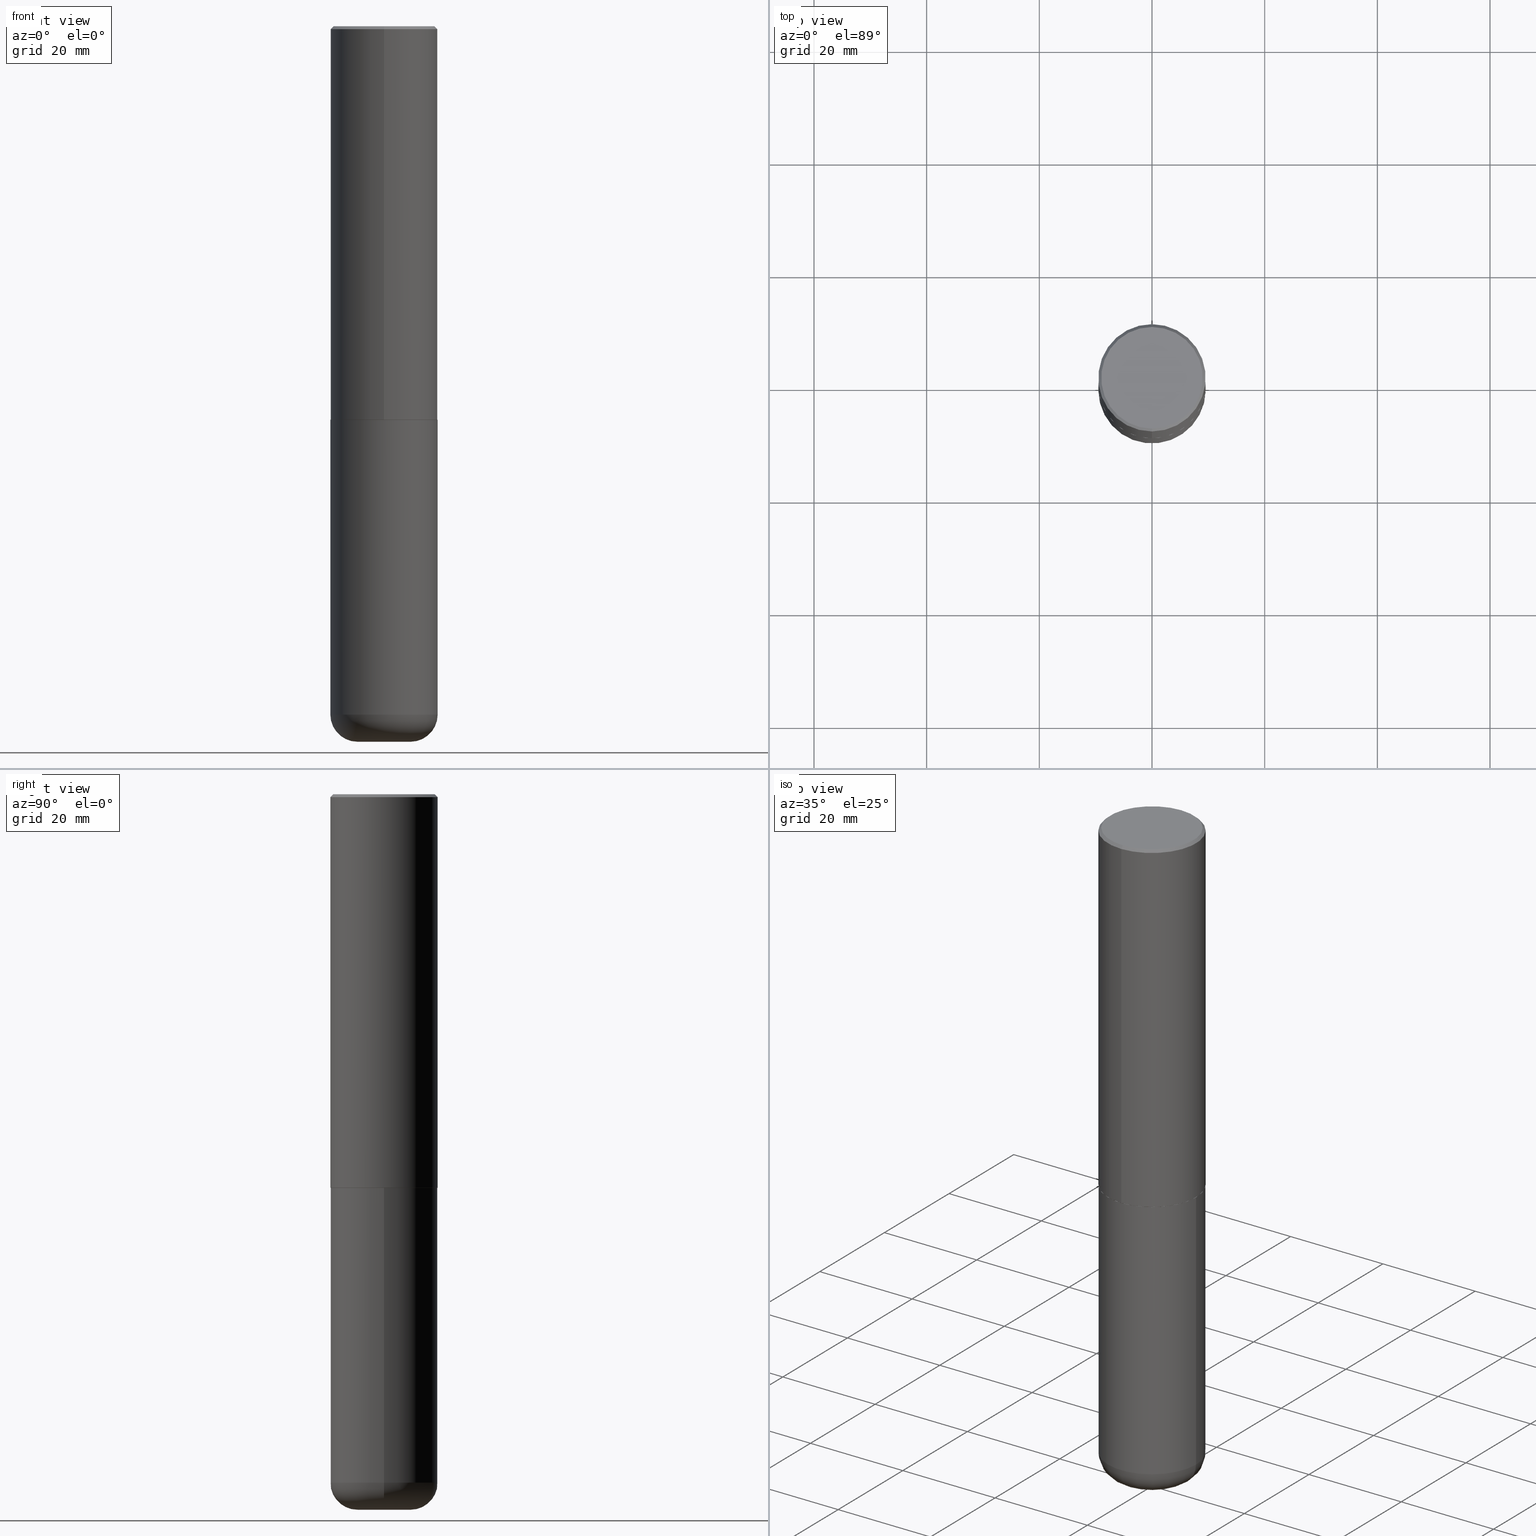
[diagram: canonical four-view strip — front | top / right | iso, engineering-drawing reading convention]
A machine part, canonical four-view strip (front | top / right | iso — engineering-drawing reading convention). The complete STEP part file that produces these views, byte-faithful:
ISO-10303-21;
HEADER;
FILE_DESCRIPTION (( 'STEP AP203' ),
    '1' );
FILE_NAME ('37675.STEP',
    '2024-03-02T07:52:41',
    ( '' ),
    ( '' ),
    'SwSTEP 2.0',
    'SolidWorks 2023',
    '' );
FILE_SCHEMA (( 'CONFIG_CONTROL_DESIGN' ));
ENDSEC;

DATA;
#1 = CYLINDRICAL_SURFACE ( 'NONE', #3, 0.3750000000000002220 ) ;
#2 = PERSON_AND_ORGANIZATION ( #291, #371 ) ;
#3 = AXIS2_PLACEMENT_3D ( 'NONE', #138, #395, #107 ) ;
#4 = CIRCLE ( 'NONE', #342, 0.1850000000000000810 ) ;
#5 = DIRECTION ( 'NONE',  ( -2.446040391741596606E-29, 3.490662795793665557E-15, 1.000000000000000000 ) ) ;
#6 =( NAMED_UNIT ( * ) SI_UNIT ( $, .STERADIAN. ) SOLID_ANGLE_UNIT ( ) );
#7 = CARTESIAN_POINT ( 'NONE',  ( -2.611628041454596160E-15, -0.3740000000000096581, -2.749999999999998668 ) ) ;
#8 = DIMENSIONAL_EXPONENTS ( 1.000000000000000000, 0.000000000000000000, 0.000000000000000000, 0.000000000000000000, 0.000000000000000000, 0.000000000000000000, 0.000000000000000000 ) ;
#9 = DIRECTION ( 'NONE',  ( 7.105427357601001859E-15, 1.000000000000000000, -3.491481338843145583E-15 ) ) ;
#10 = EDGE_CURVE ( 'NONE', #370, #416, #347, .T. ) ;
#11 = PERSON_AND_ORGANIZATION_ROLE ( 'design_supplier' ) ;
#12 = CARTESIAN_POINT ( 'NONE',  ( -2.618611004132351594E-15, -0.3750000000000002220, 1.308998548422625521E-15 ) ) ;
#13 = APPROVAL_PERSON_ORGANIZATION ( #2, #80, #98 ) ;
#14 = DIRECTION ( 'NONE',  ( -6.982962677686266711E-15, -1.000000000000000000, 3.490662795793665951E-15 ) ) ;
#15 = ADVANCED_FACE ( 'NONE', ( #102 ), #328, .T. ) ;
#16 = CARTESIAN_POINT ( 'NONE',  ( -0.3750000000000000555, -1.053326420172671351E-14, -2.750000000000000000 ) ) ;
#17 = ORIENTED_EDGE ( 'NONE', *, *, #167, .F. ) ;
#18 = DIRECTION ( 'NONE',  ( 2.446040391741596606E-29, -3.490662795793665557E-15, -1.000000000000000000 ) ) ;
#19 = DIRECTION ( 'NONE',  ( 6.982962677686265922E-15, 1.000000000000000000, -3.494488891895536035E-15 ) ) ;
#20 = DIRECTION ( 'NONE',  ( -2.445468806185136597E-29, 3.491481338843145583E-15, 1.000000000000000000 ) ) ;
#21 = CARTESIAN_POINT ( 'NONE',  ( 0.000000000000000000, 0.000000000000000000, 0.000000000000000000 ) ) ;
#22 = AXIS2_PLACEMENT_3D ( 'NONE', #133, #206, #99 ) ;
#23 = AXIS2_PLACEMENT_3D ( 'NONE', #345, #412, #385 ) ;
#24 =( CONVERSION_BASED_UNIT ( 'INCH', #350 ) LENGTH_UNIT ( ) NAMED_UNIT ( #8 ) );
#25 = ORIENTED_EDGE ( 'NONE', *, *, #144, .F. ) ;
#26 = EDGE_CURVE ( 'NONE', #130, #416, #362, .T. ) ;
#27 = ORIENTED_EDGE ( 'NONE', *, *, #325, .F. ) ;
#28 = CC_DESIGN_PERSON_AND_ORGANIZATION_ASSIGNMENT ( #284, #163, ( #180 ) ) ;
#29 = VERTEX_POINT ( 'NONE', #43 ) ;
#30 = EDGE_LOOP ( 'NONE', ( #290, #410 ) ) ;
#31 = EDGE_LOOP ( 'NONE', ( #197, #61 ) ) ;
#32 = EDGE_CURVE ( 'NONE', #59, #130, #334, .T. ) ;
#33 = PLANE ( 'NONE',  #23 ) ;
#34 = DIRECTION ( 'NONE',  ( 5.024295867789434219E-15, 0.7071067811867430830, 0.7071067811863519514 ) ) ;
#35 = CARTESIAN_POINT ( 'NONE',  ( 1.222734403092568523E-28, -1.745740669421572989E-14, -5.000000000000000000 ) ) ;
#36 = LOCAL_TIME ( 2, 52, 41.00000000000000000, #47 ) ;
#37 = APPLICATION_CONTEXT ( 'configuration controlled 3d designs of mechanical parts and assemblies' ) ;
#38 = DIRECTION ( 'NONE',  ( -6.982962677686265922E-15, -1.000000000000000000, 3.494488891895536035E-15 ) ) ;
#39 = DATE_TIME_ROLE ( 'classification_date' ) ;
#40 = EDGE_CURVE ( 'NONE', #126, #59, #327, .T. ) ;
#41 = DIRECTION ( 'NONE',  ( -6.982962677686266711E-15, -1.000000000000000000, 2.921762560068730595E-15 ) ) ;
#42 = MANIFOLD_SOLID_BREP ( 'Body-Move/Copy2[1]', #89 ) ;
#43 = CARTESIAN_POINT ( 'NONE',  ( -2.504081769186608216E-15, -0.3549999999999999822, 1.285848347115290366E-15 ) ) ;
#44 = PERSON_AND_ORGANIZATION ( #291, #371 ) ;
#45 = DIRECTION ( 'NONE',  ( -2.446040391741596606E-29, 3.490662795793665557E-15, 1.000000000000000000 ) ) ;
#46 = CIRCLE ( 'NONE', #208, 0.3549999999999999822 ) ;
#47 = COORDINATED_UNIVERSAL_TIME_OFFSET ( 5, 0, .BEHIND. ) ;
#48 = CARTESIAN_POINT ( 'NONE',  ( 1.176270495775050811E-28, -1.679402523983553013E-14, -4.810000000000000497 ) ) ;
#49 = CALENDAR_DATE ( 2024, 2, 3 ) ;
#50 = DIRECTION ( 'NONE',  ( -6.982962677686266711E-15, -1.000000000000000000, 2.921762560068730595E-15 ) ) ;
#51 = DIRECTION ( 'NONE',  ( -2.446040391741596606E-29, 3.490662795793665557E-15, 1.000000000000000000 ) ) ;
#52 = VECTOR ( 'NONE', #82, 39.37007874015748143 ) ;
#53 = DIRECTION ( 'NONE',  ( -6.982962677686265922E-15, -1.000000000000000000, 3.490662795793665557E-15 ) ) ;
#54 = CARTESIAN_POINT ( 'NONE',  ( -0.3750000000000000555, -1.412948998073515443E-14, -4.810000000000000497 ) ) ;
#55 = ORIENTED_EDGE ( 'NONE', *, *, #358, .F. ) ;
#56 = AXIS2_PLACEMENT_3D ( 'NONE', #393, #241, #271 ) ;
#57 = AXIS2_PLACEMENT_3D ( 'NONE', #305, #312, #19 ) ;
#58 = CARTESIAN_POINT ( 'NONE',  ( 1.176270495775050811E-28, -1.679402523983553013E-14, -4.810000000000000497 ) ) ;
#59 = VERTEX_POINT ( 'NONE', #333 ) ;
#60 = ORIENTED_EDGE ( 'NONE', *, *, #240, .F. ) ;
#61 = ORIENTED_EDGE ( 'NONE', *, *, #100, .F. ) ;
#62 = AXIS2_PLACEMENT_3D ( 'NONE', #120, #177, #251 ) ;
#63 = ORIENTED_EDGE ( 'NONE', *, *, #276, .F. ) ;
#64 = CARTESIAN_POINT ( 'NONE',  ( -0.1850000000000000533, -1.547952117867934441E-14, -4.810000000000000497 ) ) ;
#65 = DIRECTION ( 'NONE',  ( 0.000000000000000000, 0.000000000000000000, 1.000000000000000000 ) ) ;
#66 = LINE ( 'NONE', #12, #245 ) ;
#67 = APPROVAL_STATUS ( 'not_yet_approved' ) ;
#68 = DIRECTION ( 'NONE',  ( -2.446040391741596606E-29, 3.490662795793665557E-15, 1.000000000000000000 ) ) ;
#69 = CALENDAR_DATE ( 2024, 2, 3 ) ;
#70 = LINE ( 'NONE', #332, #174 ) ;
#71 = SHAPE_DEFINITION_REPRESENTATION ( #405, #106 ) ;
#72 = UNCERTAINTY_MEASURE_WITH_UNIT (LENGTH_MEASURE( 1.000000000000000082E-05 ), #24, 'distance_accuracy_value', 'NONE');
#73 = CARTESIAN_POINT ( 'NONE',  ( 4.892080783483214581E-31, -6.981325591587361238E-17, -0.02000000000000008715 ) ) ;
#74 = DIRECTION ( 'NONE',  ( 6.982962677686265922E-15, 1.000000000000000000, -3.494488891895536035E-15 ) ) ;
#75 = CIRCLE ( 'NONE', #198, 0.3739999999999999991 ) ;
#76 = EDGE_CURVE ( 'NONE', #59, #370, #66, .T. ) ;
#77 = EDGE_LOOP ( 'NONE', ( #227, #257, #349, #55 ) ) ;
#78 = CALENDAR_DATE ( 2024, 2, 3 ) ;
#79 = CYLINDRICAL_SURFACE ( 'NONE', #390, 0.3750000000000002220 ) ;
#80 = APPROVAL ( #392, 'UNSPECIFIED' ) ;
#81 = CARTESIAN_POINT ( 'NONE',  ( 0.3750000000000000555, -1.941263624396788015E-14, -4.810000000000000497 ) ) ;
#82 = DIRECTION ( 'NONE',  ( -2.445468806185136877E-29, 3.491481338843145188E-15, 1.000000000000000000 ) ) ;
#83 = AXIS2_PLACEMENT_3D ( 'NONE', #189, #125, #381 ) ;
#84 = CARTESIAN_POINT ( 'NONE',  ( -1.141397163745304909E-45, 1.628849886601155835E-31, 4.666305460853910467E-17 ) ) ;
#85 = CARTESIAN_POINT ( 'NONE',  ( -2.572686749164323547E-15, -0.3750000000000001110, -0.01999999999999877570 ) ) ;
#86 = ORIENTED_EDGE ( 'NONE', *, *, #40, .T. ) ;
#87 = EDGE_LOOP ( 'NONE', ( #226, #401 ) ) ;
#88 = CC_DESIGN_PERSON_AND_ORGANIZATION_ASSIGNMENT ( #335, #179, ( #166 ) ) ;
#89 = CLOSED_SHELL ( 'NONE', ( #103, #15, #220, #387, #270, #230 ) ) ;
#90 = CONICAL_SURFACE ( 'NONE', #193, 0.3739999999999999991, 0.7853981633977213939 ) ;
#91 = EDGE_LOOP ( 'NONE', ( #194, #92 ) ) ;
#92 = ORIENTED_EDGE ( 'NONE', *, *, #212, .T. ) ;
#93 = EDGE_CURVE ( 'NONE', #126, #199, #75, .T. ) ;
#94 = EDGE_LOOP ( 'NONE', ( #382, #356, #403, #261 ) ) ;
#95 = VECTOR ( 'NONE', #164, 39.37007874015748143 ) ;
#96 = AXIS2_PLACEMENT_3D ( 'NONE', #48, #20, #408 ) ;
#97 = DIRECTION ( 'NONE',  ( 1.000000000000000000, -6.982962677686266711E-15, 0.000000000000000000 ) ) ;
#98 = APPROVAL_ROLE ( '' ) ;
#99 = DIRECTION ( 'NONE',  ( 1.000000000000000000, -6.982962677686266711E-15, 0.000000000000000000 ) ) ;
#100 = EDGE_CURVE ( 'NONE', #293, #254, #129, .T. ) ;
#101 =( NAMED_UNIT ( * ) PLANE_ANGLE_UNIT ( ) SI_UNIT ( $, .RADIAN. ) );
#102 = FACE_OUTER_BOUND ( 'NONE', #346, .T. ) ;
#103 = ADVANCED_FACE ( 'NONE', ( #391 ), #170, .T. ) ;
#104 = APPROVAL_STATUS ( 'not_yet_approved' ) ;
#105 = AXIS2_PLACEMENT_3D ( 'NONE', #324, #5, #135 ) ;
#106 = ADVANCED_BREP_SHAPE_REPRESENTATION ( '37675', ( #42, #186, #409 ), #175 ) ;
#107 = DIRECTION ( 'NONE',  ( -6.982962677686266711E-15, -1.000000000000000000, 3.490662795793665951E-15 ) ) ;
#108 = DIRECTION ( 'NONE',  ( -4.937700262165896205E-15, -0.7071067811867381980, 0.7071067811863568364 ) ) ;
#109 = APPROVAL_DATE_TIME ( #331, #201 ) ;
#110 = DIRECTION ( 'NONE',  ( -2.446040391741596606E-29, 3.490662795793665557E-15, 1.000000000000000000 ) ) ;
#111 = APPROVAL_ROLE ( '' ) ;
#112 = CIRCLE ( 'NONE', #105, 0.3739999999999999991 ) ;
#113 = DIRECTION ( 'NONE',  ( -2.445468806185136597E-29, 3.491481338843145583E-15, 1.000000000000000000 ) ) ;
#114 = CC_DESIGN_APPROVAL ( #323, ( #272 ) ) ;
#115 = ORIENTED_EDGE ( 'NONE', *, *, #162, .F. ) ;
#116 = DESIGN_CONTEXT ( 'detailed design', #37, 'design' ) ;
#117 = EDGE_CURVE ( 'NONE', #293, #351, #235, .T. ) ;
#118 = DIRECTION ( 'NONE',  ( -6.982962677686266711E-15, -1.000000000000000000, 3.491481338843145583E-15 ) ) ;
#119 = CC_DESIGN_DATE_AND_TIME_ASSIGNMENT ( #145, #308, ( #375 ) ) ;
#120 = CARTESIAN_POINT ( 'NONE',  ( 6.724165036897648492E-29, -9.595832025636787455E-15, -2.749000000000000110 ) ) ;
#121 = TOROIDAL_SURFACE ( 'NONE', #96, 0.1850000000000000533, 0.1899999999999999467 ) ;
#122 = DIRECTION ( 'NONE',  ( -2.445468806185136597E-29, 3.491481338843145583E-15, 1.000000000000000000 ) ) ;
#123 = VERTEX_POINT ( 'NONE', #161 ) ;
#125 = DIRECTION ( 'NONE',  ( -2.446040391741596606E-29, 3.490662795793665557E-15, 1.000000000000000000 ) ) ;
#124 = CC_DESIGN_PERSON_AND_ORGANIZATION_ASSIGNMENT ( #44, #11, ( #272 ) ) ;
#126 = VERTEX_POINT ( 'NONE', #7 ) ;
#127 = DIRECTION ( 'NONE',  ( 1.000000000000000000, -6.982962677686265922E-15, 0.000000000000000000 ) ) ;
#128 = ORIENTED_EDGE ( 'NONE', *, *, #137, .F. ) ;
#129 = CIRCLE ( 'NONE', #190, 0.1850000000000000810 ) ;
#130 = VERTEX_POINT ( 'NONE', #295 ) ;
#131 = ADVANCED_FACE ( 'NONE', ( #140 ), #1, .T. ) ;
#132 = ORIENTED_EDGE ( 'NONE', *, *, #373, .T. ) ;
#133 = CARTESIAN_POINT ( 'NONE',  ( 6.725039217009124520E-29, -9.601573681818649859E-15, -2.750000000000000000 ) ) ;
#134 = CIRCLE ( 'NONE', #355, 0.3750000000000001110 ) ;
#135 = DIRECTION ( 'NONE',  ( -6.982962677686266711E-15, -1.000000000000000000, 2.921762560068730595E-15 ) ) ;
#136 = APPLICATION_PROTOCOL_DEFINITION ( 'international standard', 'config_control_design', 1994, #37 ) ;
#137 = EDGE_CURVE ( 'NONE', #29, #370, #238, .T. ) ;
#138 = CARTESIAN_POINT ( 'NONE',  ( 0.000000000000000000, 0.000000000000000000, 0.000000000000000000 ) ) ;
#139 = APPROVAL_ROLE ( '' ) ;
#140 = FACE_OUTER_BOUND ( 'NONE', #262, .T. ) ;
#141 = AXIS2_PLACEMENT_3D ( 'NONE', #234, #205, #301 ) ;
#142 = LOCAL_TIME ( 2, 52, 41.00000000000000000, #364 ) ;
#143 = DIRECTION ( 'NONE',  ( -2.446040391741596606E-29, 3.490662795793665557E-15, 1.000000000000000000 ) ) ;
#144 = EDGE_CURVE ( 'NONE', #199, #130, #70, .T. ) ;
#145 = DATE_AND_TIME ( #239, #298 ) ;
#146 = LINE ( 'NONE', #275, #246 ) ;
#147 = FACE_OUTER_BOUND ( 'NONE', #31, .T. ) ;
#148 = ORIENTED_EDGE ( 'NONE', *, *, #144, .T. ) ;
#149 = FACE_OUTER_BOUND ( 'NONE', #77, .T. ) ;
#150 = CARTESIAN_POINT ( 'NONE',  ( 2.660982545421643429E-15, 0.3739999999999903957, -2.750000000000000888 ) ) ;
#151 = FACE_OUTER_BOUND ( 'NONE', #94, .T. ) ;
#152 = ORIENTED_EDGE ( 'NONE', *, *, #137, .T. ) ;
#153 = AXIS2_PLACEMENT_3D ( 'NONE', #213, #217, #249 ) ;
#154 = EDGE_CURVE ( 'NONE', #322, #123, #183, .T. ) ;
#155 = ORIENTED_EDGE ( 'NONE', *, *, #40, .F. ) ;
#156 = FACE_OUTER_BOUND ( 'NONE', #30, .T. ) ;
#157 = ORIENTED_EDGE ( 'NONE', *, *, #32, .F. ) ;
#158 = ORIENTED_EDGE ( 'NONE', *, *, #212, .F. ) ;
#159 = AXIS2_PLACEMENT_3D ( 'NONE', #372, #338, #280 ) ;
#160 = ORIENTED_EDGE ( 'NONE', *, *, #32, .T. ) ;
#161 = CARTESIAN_POINT ( 'NONE',  ( 0.3750000000000000555, -1.222018468595100145E-14, -2.750000000000000000 ) ) ;
#162 = EDGE_CURVE ( 'NONE', #123, #322, #259, .T. ) ;
#163 = PERSON_AND_ORGANIZATION_ROLE ( 'design_owner' ) ;
#164 = DIRECTION ( 'NONE',  ( 4.937700262164538576E-15, 0.7071067811865437980, -0.7071067811865512365 ) ) ;
#165 = DIRECTION ( 'NONE',  ( -2.445468806185136597E-29, 3.491481338843145583E-15, 1.000000000000000000 ) ) ;
#166 = SECURITY_CLASSIFICATION ( '', '', #397 ) ;
#167 = EDGE_CURVE ( 'NONE', #178, #416, #357, .T. ) ;
#168 = DIRECTION ( 'NONE',  ( -2.446040391741596606E-29, 3.490662795793665557E-15, 1.000000000000000000 ) ) ;
#169 = COORDINATED_UNIVERSAL_TIME_OFFSET ( 5, 0, .BEHIND. ) ;
#170 = CYLINDRICAL_SURFACE ( 'NONE', #56, 0.3750000000000001110 ) ;
#171 = PERSON_AND_ORGANIZATION_ROLE ( 'creator' ) ;
#172 = CARTESIAN_POINT ( 'NONE',  ( 6.725039217009124520E-29, -9.601573681818649859E-15, -2.750000000000000000 ) ) ;
#173 = PERSON_AND_ORGANIZATION ( #291, #371 ) ;
#174 = VECTOR ( 'NONE', #34, 39.37007874015748143 ) ;
#175 =( GEOMETRIC_REPRESENTATION_CONTEXT ( 3 ) GLOBAL_UNCERTAINTY_ASSIGNED_CONTEXT ( ( #72 ) ) GLOBAL_UNIT_ASSIGNED_CONTEXT ( ( #24, #101, #6 ) ) REPRESENTATION_CONTEXT ( 'NONE', 'WORKASPACE' ) );
#176 = FACE_OUTER_BOUND ( 'NONE', #221, .T. ) ;
#177 = DIRECTION ( 'NONE',  ( -2.446040391741596606E-29, 3.490662795793665557E-15, 1.000000000000000000 ) ) ;
#178 = VERTEX_POINT ( 'NONE', #200 ) ;
#179 = PERSON_AND_ORGANIZATION_ROLE ( 'classification_officer' ) ;
#180 = PRODUCT ( '37675', '37675', '', ( #394 ) ) ;
#181 = EDGE_CURVE ( 'NONE', #199, #126, #112, .T. ) ;
#182 = DIRECTION ( 'NONE',  ( 6.982962677686265922E-15, 1.000000000000000000, -3.490662795793665557E-15 ) ) ;
#183 = CIRCLE ( 'NONE', #22, 0.3750000000000000555 ) ;
#184 = PLANE ( 'NONE',  #396 ) ;
#185 = AXIS2_PLACEMENT_3D ( 'NONE', #283, #18, #74 ) ;
#186 = MANIFOLD_SOLID_BREP ( 'Body-Move/Copy2[2]', #377 ) ;
#187 = LINE ( 'NONE', #281, #52 ) ;
#188 = APPROVAL_DATE_TIME ( #359, #80 ) ;
#189 = CARTESIAN_POINT ( 'NONE',  ( 4.892080783483214581E-31, -6.981325591587361238E-17, -0.02000000000000008715 ) ) ;
#190 = AXIS2_PLACEMENT_3D ( 'NONE', #299, #269, #398 ) ;
#191 = AXIS2_PLACEMENT_3D ( 'NONE', #407, #118, #311 ) ;
#192 = ORIENTED_EDGE ( 'NONE', *, *, #117, .T. ) ;
#193 = AXIS2_PLACEMENT_3D ( 'NONE', #343, #369, #242 ) ;
#194 = ORIENTED_EDGE ( 'NONE', *, *, #339, .T. ) ;
#195 = ADVANCED_FACE ( 'NONE', ( #233 ), #292, .T. ) ;
#196 = EDGE_LOOP ( 'NONE', ( #160, #353, #321, #288 ) ) ;
#197 = ORIENTED_EDGE ( 'NONE', *, *, #367, .F. ) ;
#198 = AXIS2_PLACEMENT_3D ( 'NONE', #273, #143, #41 ) ;
#199 = VERTEX_POINT ( 'NONE', #150 ) ;
#200 = CARTESIAN_POINT ( 'NONE',  ( 2.548781377355487113E-15, 0.3549999999999999822, -1.192522237898212341E-15 ) ) ;
#201 = APPROVAL ( #104, 'UNSPECIFIED' ) ;
#202 = PERSON_AND_ORGANIZATION ( #291, #371 ) ;
#203 = DIRECTION ( 'NONE',  ( -6.982962677686265922E-15, -1.000000000000000000, 2.913971193241877611E-15 ) ) ;
#204 = PERSON_AND_ORGANIZATION ( #291, #371 ) ;
#205 = DIRECTION ( 'NONE',  ( -2.445468806185136597E-29, 3.491481338843145583E-15, 1.000000000000000000 ) ) ;
#206 = DIRECTION ( 'NONE',  ( -2.445468806185136597E-29, 3.491481338843145583E-15, 1.000000000000000000 ) ) ;
#207 = DIRECTION ( 'NONE',  ( -1.000000000000000000, 7.105427357601001070E-15, 0.000000000000000000 ) ) ;
#208 = AXIS2_PLACEMENT_3D ( 'NONE', #219, #232, #253 ) ;
#209 = CARTESIAN_POINT ( 'NONE',  ( 0.000000000000000000, 0.000000000000000000, 0.000000000000000000 ) ) ;
#210 = EDGE_CURVE ( 'NONE', #351, #322, #187, .T. ) ;
#211 = DIRECTION ( 'NONE',  ( 1.000000000000000000, -6.982962677686265922E-15, 0.000000000000000000 ) ) ;
#212 = EDGE_CURVE ( 'NONE', #29, #178, #264, .T. ) ;
#213 = CARTESIAN_POINT ( 'NONE',  ( 1.222734403092568523E-28, -1.745740669421572989E-14, -5.000000000000000000 ) ) ;
#214 = AXIS2_PLACEMENT_3D ( 'NONE', #84, #110, #53 ) ;
#215 = FACE_OUTER_BOUND ( 'NONE', #411, .T. ) ;
#216 = CONICAL_SURFACE ( 'NONE', #57, 0.3750000000000000555, 0.7853981633974465026 ) ;
#217 = DIRECTION ( 'NONE',  ( 2.438088387897960049E-29, -3.491481338843145188E-15, -1.000000000000000000 ) ) ;
#218 = APPLICATION_CONTEXT ( 'configuration controlled 3d designs of mechanical parts and assemblies' ) ;
#219 = CARTESIAN_POINT ( 'NONE',  ( -1.141397163745304909E-45, 1.628849886601155835E-31, 4.666305460853910467E-17 ) ) ;
#220 = ADVANCED_FACE ( 'NONE', ( #247 ), #379, .F. ) ;
#221 = EDGE_LOOP ( 'NONE', ( #25, #389, #86, #63 ) ) ;
#222 = DIRECTION ( 'NONE',  ( 1.000000000000000000, 0.000000000000000000, 0.000000000000000000 ) ) ;
#223 = CC_DESIGN_APPROVAL ( #80, ( #375 ) ) ;
#224 = ORIENTED_EDGE ( 'NONE', *, *, #76, .T. ) ;
#225 = ADVANCED_FACE ( 'NONE', ( #406 ), #184, .F. ) ;
#226 = ORIENTED_EDGE ( 'NONE', *, *, #162, .T. ) ;
#227 = ORIENTED_EDGE ( 'NONE', *, *, #117, .F. ) ;
#228 = VERTEX_POINT ( 'NONE', #81 ) ;
#229 = AXIS2_PLACEMENT_3D ( 'NONE', #58, #122, #127 ) ;
#230 = ADVANCED_FACE ( 'NONE', ( #147 ), #310, .T. ) ;
#231 = CARTESIAN_POINT ( 'NONE',  ( -2.572686749164323547E-15, -0.3750000000000001110, -0.01999999999999877570 ) ) ;
#232 = DIRECTION ( 'NONE',  ( -2.446040391741596606E-29, 3.490662795793665557E-15, 1.000000000000000000 ) ) ;
#233 = FACE_OUTER_BOUND ( 'NONE', #413, .T. ) ;
#234 = CARTESIAN_POINT ( 'NONE',  ( 1.176270495775050811E-28, -1.679402523983553013E-14, -4.810000000000000497 ) ) ;
#235 = CIRCLE ( 'NONE', #250, 0.1899999999999999190 ) ;
#236 = ADVANCED_FACE ( 'NONE', ( #176 ), #90, .T. ) ;
#237 = CC_DESIGN_SECURITY_CLASSIFICATION ( #166, ( #272 ) ) ;
#238 = LINE ( 'NONE', #231, #297 ) ;
#239 = CALENDAR_DATE ( 2024, 2, 3 ) ;
#240 = EDGE_CURVE ( 'NONE', #254, #228, #304, .T. ) ;
#241 = DIRECTION ( 'NONE',  ( -2.445468806185136597E-29, 3.491481338843145583E-15, 1.000000000000000000 ) ) ;
#243 = ADVANCED_FACE ( 'NONE', ( #376 ), #216, .T. ) ;
#242 = DIRECTION ( 'NONE',  ( -6.982962677686266711E-15, -1.000000000000000000, 2.921762560068730595E-15 ) ) ;
#244 = ORIENTED_EDGE ( 'NONE', *, *, #339, .F. ) ;
#245 = VECTOR ( 'NONE', #168, 39.37007874015748143 ) ;
#246 = VECTOR ( 'NONE', #337, 39.37007874015748143 ) ;
#247 = FACE_OUTER_BOUND ( 'NONE', #87, .T. ) ;
#248 = CARTESIAN_POINT ( 'NONE',  ( 2.478951750578624209E-15, 0.3549999999999999822, -1.215853765202481601E-15 ) ) ;
#249 = DIRECTION ( 'NONE',  ( -1.000000000000000000, 6.982962677686265922E-15, -4.876176775795935793E-29 ) ) ;
#250 = AXIS2_PLACEMENT_3D ( 'NONE', #64, #9, #207 ) ;
#251 = DIRECTION ( 'NONE',  ( -6.982962677686265922E-15, -1.000000000000000000, 2.913971193241877611E-15 ) ) ;
#252 = LOCAL_TIME ( 2, 52, 41.00000000000000000, #268 ) ;
#253 = DIRECTION ( 'NONE',  ( -6.982962677686265922E-15, -1.000000000000000000, 3.490662795793665557E-15 ) ) ;
#254 = VERTEX_POINT ( 'NONE', #400 ) ;
#255 = CARTESIAN_POINT ( 'NONE',  ( 0.000000000000000000, 0.000000000000000000, 0.000000000000000000 ) ) ;
#256 = ADVANCED_FACE ( 'NONE', ( #215 ), #336, .T. ) ;
#257 = ORIENTED_EDGE ( 'NONE', *, *, #100, .T. ) ;
#258 = DIRECTION ( 'NONE',  ( 1.000000000000000000, -6.982962677686265922E-15, 4.876176775795935793E-29 ) ) ;
#259 = CIRCLE ( 'NONE', #414, 0.3750000000000000555 ) ;
#260 = EDGE_LOOP ( 'NONE', ( #158, #152, #384, #17 ) ) ;
#261 = ORIENTED_EDGE ( 'NONE', *, *, #154, .F. ) ;
#262 = EDGE_LOOP ( 'NONE', ( #386, #315, #224, #388 ) ) ;
#263 = CARTESIAN_POINT ( 'NONE',  ( 6.724165036897648492E-29, -9.595832025636787455E-15, -2.749000000000000110 ) ) ;
#264 = CIRCLE ( 'NONE', #214, 0.3549999999999999822 ) ;
#265 = AXIS2_PLACEMENT_3D ( 'NONE', #255, #348, #258 ) ;
#266 = CYLINDRICAL_SURFACE ( 'NONE', #265, 0.3750000000000001110 ) ;
#267 = DIRECTION ( 'NONE',  ( -2.445468806185136597E-29, 3.491481338843145583E-15, 1.000000000000000000 ) ) ;
#268 = COORDINATED_UNIVERSAL_TIME_OFFSET ( 5, 0, .BEHIND. ) ;
#269 = DIRECTION ( 'NONE',  ( -2.445468806185136597E-29, 3.491481338843145583E-15, 1.000000000000000000 ) ) ;
#270 = ADVANCED_FACE ( 'NONE', ( #149 ), #121, .T. ) ;
#271 = DIRECTION ( 'NONE',  ( 1.000000000000000000, -6.982962677686265922E-15, 4.876176775795935793E-29 ) ) ;
#272 = PRODUCT_DEFINITION_FORMATION_WITH_SPECIFIED_SOURCE ( 'ANY', '', #180, .NOT_KNOWN. ) ;
#273 = CARTESIAN_POINT ( 'NONE',  ( 6.726611077289389265E-29, -9.599322688432580971E-15, -2.750000000000000000 ) ) ;
#274 = DATE_AND_TIME ( #78, #320 ) ;
#275 = CARTESIAN_POINT ( 'NONE',  ( 0.3750000000000001110, -2.618611004132350411E-15, 1.828566290923476483E-29 ) ) ;
#276 = EDGE_CURVE ( 'NONE', #130, #59, #378, .T. ) ;
#277 = FACE_OUTER_BOUND ( 'NONE', #196, .T. ) ;
#278 = APPROVAL_DATE_TIME ( #274, #323 ) ;
#279 = APPROVAL_PERSON_ORGANIZATION ( #306, #201, #139 ) ;
#280 = DIRECTION ( 'NONE',  ( -1.000000000000000000, 6.982962677686265922E-15, -4.876176775795935793E-29 ) ) ;
#281 = CARTESIAN_POINT ( 'NONE',  ( -0.3750000000000001110, 2.664535259100376486E-15, -1.844600658845590159E-29 ) ) ;
#282 = ADVANCED_FACE ( 'NONE', ( #277 ), #79, .T. ) ;
#283 = CARTESIAN_POINT ( 'NONE',  ( 4.892080783483214581E-31, -6.981325591587361238E-17, -0.02000000000000008715 ) ) ;
#284 = PERSON_AND_ORGANIZATION ( #291, #371 ) ;
#285 = CIRCLE ( 'NONE', #229, 0.3750000000000001110 ) ;
#286 = ORIENTED_EDGE ( 'NONE', *, *, #287, .F. ) ;
#287 = EDGE_CURVE ( 'NONE', #228, #123, #146, .T. ) ;
#288 = ORIENTED_EDGE ( 'NONE', *, *, #76, .F. ) ;
#289 =( LENGTH_UNIT ( ) NAMED_UNIT ( * ) SI_UNIT ( $, .METRE. ) );
#290 = ORIENTED_EDGE ( 'NONE', *, *, #93, .F. ) ;
#291 = PERSON ( 'UNSPECIFIED', 'UNSPECIFIED', 'UNSPECIFIED', ('UNSPECIFIED'), ('UNSPECIFIED'), ('UNSPECIFIED') ) ;
#292 = CONICAL_SURFACE ( 'NONE', #341, 0.3739999999999999991, 0.7853981633977213939 ) ;
#293 = VERTEX_POINT ( 'NONE', #307 ) ;
#294 = ORIENTED_EDGE ( 'NONE', *, *, #167, .T. ) ;
#295 = CARTESIAN_POINT ( 'NONE',  ( 2.664535259100411196E-15, 0.3749999999999907296, -2.749000000000000998 ) ) ;
#296 = CARTESIAN_POINT ( 'NONE',  ( 2.618611004132350411E-15, 0.3749999999999999445, -0.02000000000000139513 ) ) ;
#297 = VECTOR ( 'NONE', #365, 39.37007874015748143 ) ;
#298 = LOCAL_TIME ( 2, 52, 41.00000000000000000, #169 ) ;
#299 = CARTESIAN_POINT ( 'NONE',  ( 1.222734403092568523E-28, -1.745740669421572989E-14, -5.000000000000000000 ) ) ;
#300 = PRODUCT_RELATED_PRODUCT_CATEGORY ( 'detail', '', ( #180 ) ) ;
#301 = DIRECTION ( 'NONE',  ( 1.000000000000000000, -6.982962677686269077E-15, 4.883557194083113462E-29 ) ) ;
#302 = DIRECTION ( 'NONE',  ( -2.446040391741596606E-29, 3.490662795793665557E-15, 1.000000000000000000 ) ) ;
#303 = VECTOR ( 'NONE', #68, 39.37007874015748143 ) ;
#304 = CIRCLE ( 'NONE', #191, 0.1899999999999999190 ) ;
#305 = CARTESIAN_POINT ( 'NONE',  ( 4.892080783483214581E-31, -6.981325591587361238E-17, -0.02000000000000008715 ) ) ;
#306 = PERSON_AND_ORGANIZATION ( #291, #371 ) ;
#307 = CARTESIAN_POINT ( 'NONE',  ( -0.1850000000000000810, -1.513619630689734772E-14, -5.000000000000000000 ) ) ;
#308 = DATE_TIME_ROLE ( 'creation_date' ) ;
#309 = CC_DESIGN_DATE_AND_TIME_ASSIGNMENT ( #366, #39, ( #166 ) ) ;
#310 = PLANE ( 'NONE',  #153 ) ;
#311 = DIRECTION ( 'NONE',  ( 1.000000000000000000, -6.982962677686264344E-15, 0.000000000000000000 ) ) ;
#312 = DIRECTION ( 'NONE',  ( 2.446040391741596606E-29, -3.490662795793665557E-15, -1.000000000000000000 ) ) ;
#313 = PERSON_AND_ORGANIZATION_ROLE ( 'creator' ) ;
#314 = EDGE_LOOP ( 'NONE', ( #318, #316, #115, #286 ) ) ;
#315 = ORIENTED_EDGE ( 'NONE', *, *, #276, .T. ) ;
#316 = ORIENTED_EDGE ( 'NONE', *, *, #210, .T. ) ;
#317 = APPLICATION_PROTOCOL_DEFINITION ( 'international standard', 'config_control_design', 1994, #218 ) ;
#318 = ORIENTED_EDGE ( 'NONE', *, *, #325, .T. ) ;
#319 = AXIS2_PLACEMENT_3D ( 'NONE', #73, #360, #38 ) ;
#320 = LOCAL_TIME ( 2, 52, 41.00000000000000000, #399 ) ;
#321 = ORIENTED_EDGE ( 'NONE', *, *, #10, .F. ) ;
#322 = VERTEX_POINT ( 'NONE', #16 ) ;
#323 = APPROVAL ( #67, 'UNSPECIFIED' ) ;
#324 = CARTESIAN_POINT ( 'NONE',  ( 6.726611077289389265E-29, -9.599322688432580971E-15, -2.750000000000000000 ) ) ;
#325 = EDGE_CURVE ( 'NONE', #228, #351, #134, .T. ) ;
#326 = DIRECTION ( 'NONE',  ( 1.000000000000000000, -6.982962677686272233E-15, 0.000000000000000000 ) ) ;
#327 = LINE ( 'NONE', #330, #363 ) ;
#328 = TOROIDAL_SURFACE ( 'NONE', #141, 0.1850000000000000533, 0.1899999999999999467 ) ;
#329 = APPROVAL_PERSON_ORGANIZATION ( #204, #323, #111 ) ;
#330 = CARTESIAN_POINT ( 'NONE',  ( -2.611628041454596160E-15, -0.3740000000000096581, -2.749999999999998668 ) ) ;
#331 = DATE_AND_TIME ( #69, #142 ) ;
#332 = CARTESIAN_POINT ( 'NONE',  ( 2.657429831742841742E-15, 0.3739999999999903957, -2.750000000000000888 ) ) ;
#333 = CARTESIAN_POINT ( 'NONE',  ( -2.618611004132284935E-15, -0.3750000000000099920, -2.748999999999999222 ) ) ;
#334 = CIRCLE ( 'NONE', #354, 0.3750000000000003886 ) ;
#335 = PERSON_AND_ORGANIZATION ( #291, #371 ) ;
#336 = CONICAL_SURFACE ( 'NONE', #185, 0.3750000000000000555, 0.7853981633974465026 ) ;
#337 = DIRECTION ( 'NONE',  ( -2.445468806185136877E-29, 3.491481338843145188E-15, 1.000000000000000000 ) ) ;
#338 = DIRECTION ( 'NONE',  ( 2.438088387897960049E-29, -3.491481338843145188E-15, -1.000000000000000000 ) ) ;
#339 = EDGE_CURVE ( 'NONE', #178, #29, #46, .T. ) ;
#340 = CARTESIAN_POINT ( 'NONE',  ( 6.726611077289389265E-29, -9.599322688432580971E-15, -2.750000000000000000 ) ) ;
#341 = AXIS2_PLACEMENT_3D ( 'NONE', #340, #51, #50 ) ;
#342 = AXIS2_PLACEMENT_3D ( 'NONE', #35, #165, #326 ) ;
#343 = CARTESIAN_POINT ( 'NONE',  ( 6.726611077289389265E-29, -9.599322688432580971E-15, -2.750000000000000000 ) ) ;
#344 = CALENDAR_DATE ( 2024, 2, 3 ) ;
#345 = CARTESIAN_POINT ( 'NONE',  ( 6.726611077289389265E-29, -9.599322688432580971E-15, -2.750000000000000000 ) ) ;
#346 = EDGE_LOOP ( 'NONE', ( #380, #192, #27, #60 ) ) ;
#347 = CIRCLE ( 'NONE', #319, 0.3750000000000000555 ) ;
#348 = DIRECTION ( 'NONE',  ( -2.445468806185136597E-29, 3.491481338843145583E-15, 1.000000000000000000 ) ) ;
#349 = ORIENTED_EDGE ( 'NONE', *, *, #240, .T. ) ;
#350 = LENGTH_MEASURE_WITH_UNIT ( LENGTH_MEASURE( 0.02539999999999999897 ), #289 );
#351 = VERTEX_POINT ( 'NONE', #54 ) ;
#352 = ADVANCED_FACE ( 'NONE', ( #156 ), #33, .F. ) ;
#353 = ORIENTED_EDGE ( 'NONE', *, *, #26, .T. ) ;
#354 = AXIS2_PLACEMENT_3D ( 'NONE', #263, #302, #203 ) ;
#355 = AXIS2_PLACEMENT_3D ( 'NONE', #402, #113, #211 ) ;
#356 = ORIENTED_EDGE ( 'NONE', *, *, #358, .T. ) ;
#357 = LINE ( 'NONE', #296, #95 ) ;
#358 = EDGE_CURVE ( 'NONE', #351, #228, #285, .T. ) ;
#359 = DATE_AND_TIME ( #344, #252 ) ;
#360 = DIRECTION ( 'NONE',  ( -2.446040391741596606E-29, 3.490662795793665557E-15, 1.000000000000000000 ) ) ;
#361 = CC_DESIGN_PERSON_AND_ORGANIZATION_ASSIGNMENT ( #202, #313, ( #375 ) ) ;
#362 = LINE ( 'NONE', #368, #303 ) ;
#363 = VECTOR ( 'NONE', #108, 39.37007874015748143 ) ;
#364 = COORDINATED_UNIVERSAL_TIME_OFFSET ( 5, 0, .BEHIND. ) ;
#365 = DIRECTION ( 'NONE',  ( -4.851104656540954809E-15, -0.7071067811865486830, -0.7071067811865463515 ) ) ;
#366 = DATE_AND_TIME ( #49, #36 ) ;
#367 = EDGE_CURVE ( 'NONE', #254, #293, #4, .T. ) ;
#368 = CARTESIAN_POINT ( 'NONE',  ( 2.664535259100376880E-15, 0.3750000000000002220, -1.308998548422625521E-15 ) ) ;
#369 = DIRECTION ( 'NONE',  ( -2.446040391741596606E-29, 3.490662795793665557E-15, 1.000000000000000000 ) ) ;
#370 = VERTEX_POINT ( 'NONE', #85 ) ;
#371 = ORGANIZATION ( 'UNSPECIFIED', 'UNSPECIFIED', '' ) ;
#372 = CARTESIAN_POINT ( 'NONE',  ( 6.725039217009124520E-29, -9.601573681818649859E-15, -2.750000000000000000 ) ) ;
#373 = EDGE_CURVE ( 'NONE', #416, #370, #404, .T. ) ;
#374 = DIRECTION ( 'NONE',  ( 2.446040391741596045E-29, -3.490662795793665557E-15, -1.000000000000000000 ) ) ;
#375 = PRODUCT_DEFINITION ( 'UNKNOWN', '', #272, #116 ) ;
#376 = FACE_OUTER_BOUND ( 'NONE', #260, .T. ) ;
#377 = CLOSED_SHELL ( 'NONE', ( #195, #282, #243, #256, #131, #236, #352, #225 ) ) ;
#378 = CIRCLE ( 'NONE', #62, 0.3750000000000003886 ) ;
#379 = PLANE ( 'NONE',  #159 ) ;
#380 = ORIENTED_EDGE ( 'NONE', *, *, #367, .T. ) ;
#381 = DIRECTION ( 'NONE',  ( -6.982962677686265922E-15, -1.000000000000000000, 3.494488891895536035E-15 ) ) ;
#382 = ORIENTED_EDGE ( 'NONE', *, *, #210, .F. ) ;
#383 = CARTESIAN_POINT ( 'NONE',  ( 2.618611004132350411E-15, 0.3749999999999999445, -0.02000000000000139513 ) ) ;
#384 = ORIENTED_EDGE ( 'NONE', *, *, #10, .T. ) ;
#385 = DIRECTION ( 'NONE',  ( -6.982962677686265922E-15, -1.000000000000000000, 3.490662795793665557E-15 ) ) ;
#386 = ORIENTED_EDGE ( 'NONE', *, *, #26, .F. ) ;
#387 = ADVANCED_FACE ( 'NONE', ( #151 ), #266, .T. ) ;
#388 = ORIENTED_EDGE ( 'NONE', *, *, #373, .F. ) ;
#389 = ORIENTED_EDGE ( 'NONE', *, *, #181, .T. ) ;
#390 = AXIS2_PLACEMENT_3D ( 'NONE', #209, #45, #14 ) ;
#391 = FACE_OUTER_BOUND ( 'NONE', #314, .T. ) ;
#392 = APPROVAL_STATUS ( 'not_yet_approved' ) ;
#393 = CARTESIAN_POINT ( 'NONE',  ( 0.000000000000000000, 0.000000000000000000, 0.000000000000000000 ) ) ;
#394 = MECHANICAL_CONTEXT ( 'NONE', #218, 'mechanical' ) ;
#395 = DIRECTION ( 'NONE',  ( -2.446040391741596606E-29, 3.490662795793665557E-15, 1.000000000000000000 ) ) ;
#396 = AXIS2_PLACEMENT_3D ( 'NONE', #248, #374, #182 ) ;
#397 = SECURITY_CLASSIFICATION_LEVEL ( 'unclassified' ) ;
#398 = DIRECTION ( 'NONE',  ( 1.000000000000000000, -6.982962677686272233E-15, 0.000000000000000000 ) ) ;
#399 = COORDINATED_UNIVERSAL_TIME_OFFSET ( 5, 0, .BEHIND. ) ;
#400 = CARTESIAN_POINT ( 'NONE',  ( 0.1850000000000000810, -1.874925478958768986E-14, -5.000000000000000000 ) ) ;
#401 = ORIENTED_EDGE ( 'NONE', *, *, #154, .T. ) ;
#402 = CARTESIAN_POINT ( 'NONE',  ( 1.176270495775050811E-28, -1.679402523983553013E-14, -4.810000000000000497 ) ) ;
#403 = ORIENTED_EDGE ( 'NONE', *, *, #287, .T. ) ;
#404 = CIRCLE ( 'NONE', #83, 0.3750000000000000555 ) ;
#405 = PRODUCT_DEFINITION_SHAPE ( 'NONE', 'NONE',  #375 ) ;
#406 = FACE_OUTER_BOUND ( 'NONE', #91, .T. ) ;
#407 = CARTESIAN_POINT ( 'NONE',  ( 0.1850000000000000533, -1.808587333520749010E-14, -4.810000000000000497 ) ) ;
#408 = DIRECTION ( 'NONE',  ( 1.000000000000000000, -6.982962677686269077E-15, 4.883557194083113462E-29 ) ) ;
#409 = AXIS2_PLACEMENT_3D ( 'NONE', #21, #65, #222 ) ;
#410 = ORIENTED_EDGE ( 'NONE', *, *, #181, .F. ) ;
#411 = EDGE_LOOP ( 'NONE', ( #128, #244, #294, #132 ) ) ;
#412 = DIRECTION ( 'NONE',  ( -2.446040391741596045E-29, 3.490662795793665557E-15, 1.000000000000000000 ) ) ;
#413 = EDGE_LOOP ( 'NONE', ( #418, #148, #157, #155 ) ) ;
#414 = AXIS2_PLACEMENT_3D ( 'NONE', #172, #267, #97 ) ;
#415 = CC_DESIGN_APPROVAL ( #201, ( #166 ) ) ;
#416 = VERTEX_POINT ( 'NONE', #383 ) ;
#417 = CC_DESIGN_PERSON_AND_ORGANIZATION_ASSIGNMENT ( #173, #171, ( #272 ) ) ;
#418 = ORIENTED_EDGE ( 'NONE', *, *, #93, .T. ) ;
ENDSEC;
END-ISO-10303-21;
